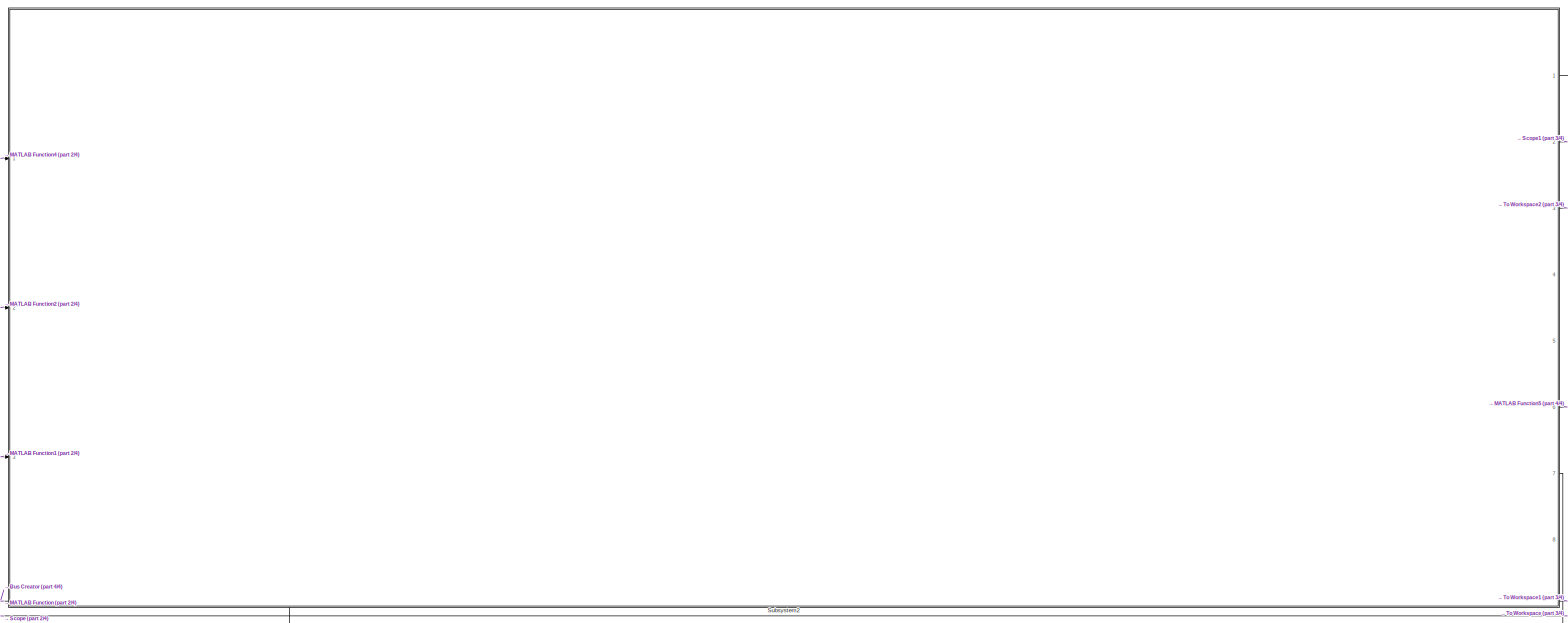
[diagram: root canvas - part 1/4, central region]
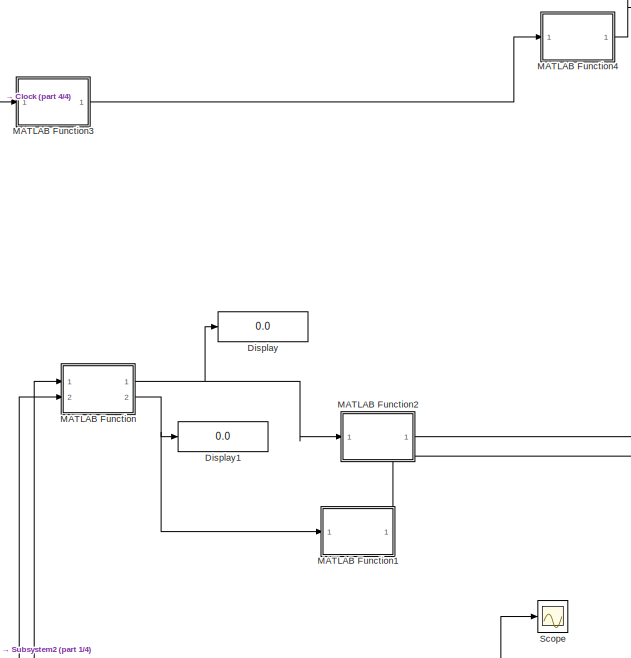
[diagram: root canvas - part 2/4, middle left region]
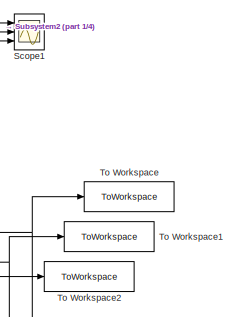
[diagram: root canvas - part 3/4, middle right region]
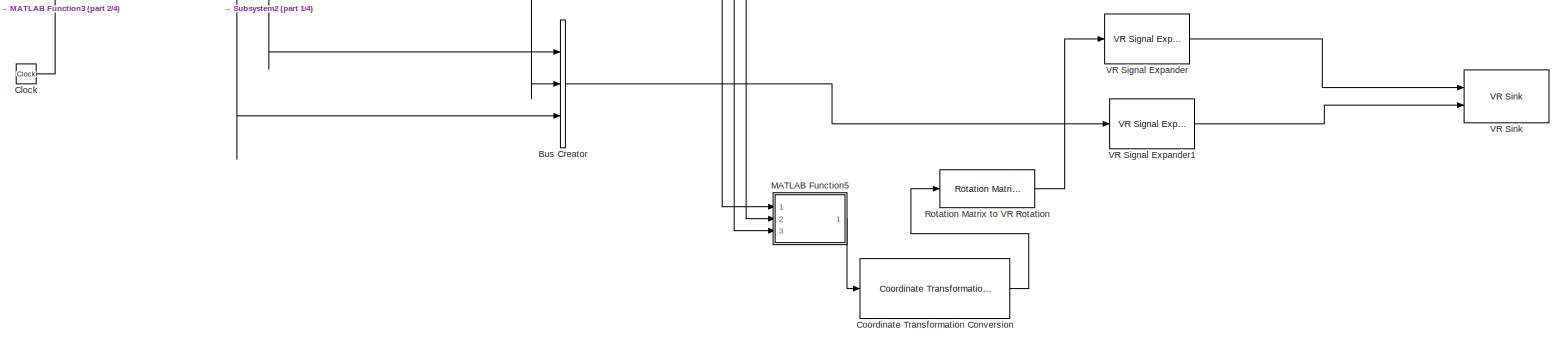
[diagram: root canvas - part 4/4, bottom center region]
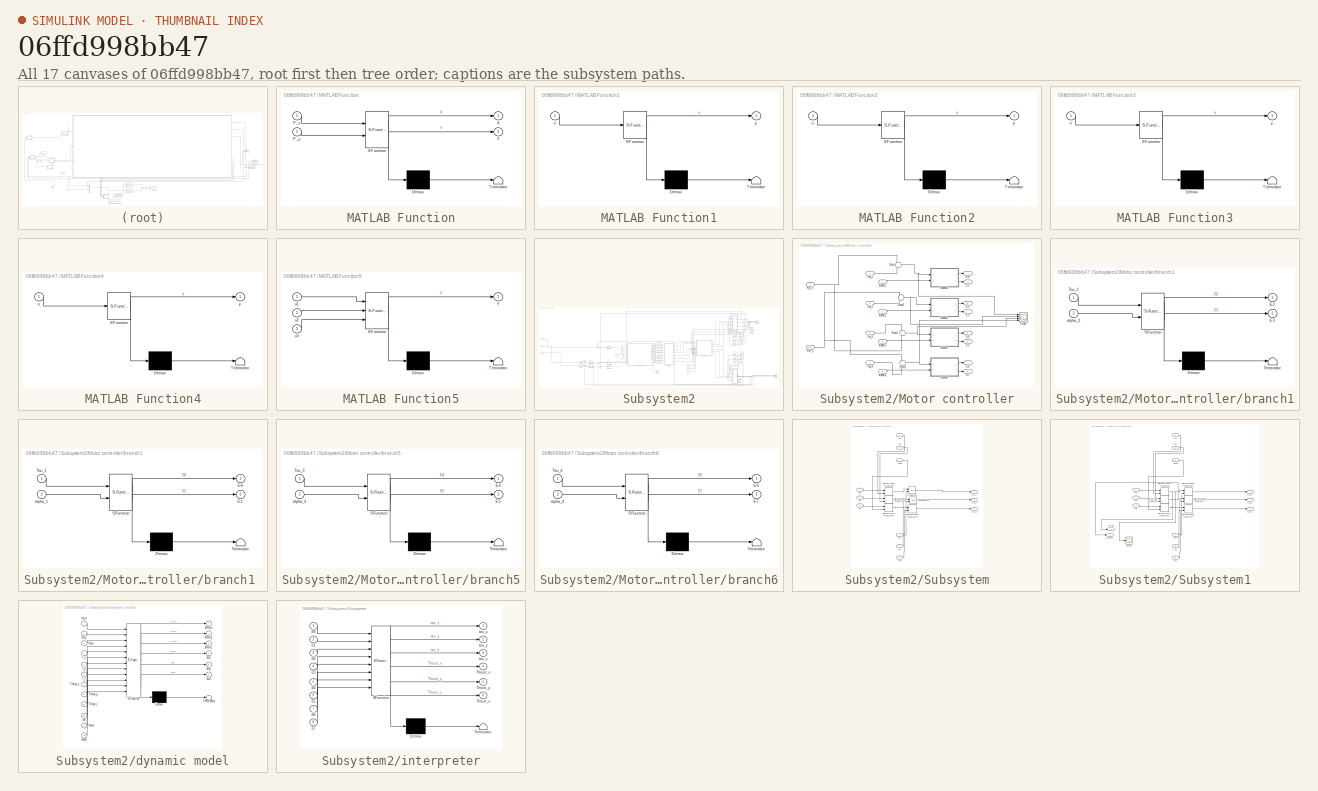
[diagram: thumbnail index - all 17 canvases of the model, root first then tree order]
MODEL slx_06ffd998bb47
KIND model
CONFIG AbsTol = auto
CONFIG EnableMultiTasking = off
CONFIG FixedStep = auto
CONFIG MaxStep = auto
CONFIG MinStep = auto
CONFIG RelTol = 1e-3
CONFIG SampleTimeConstraint = Unconstrained
CONFIG Solver = VariableStepAuto
CONFIG SolverName = VariableStepAuto
CONFIG StartTime = 0.0
CONFIG StopTime = 10
BLOCK [BusCreator] Bus Creator
  DisplayOption = bar
  InheritFromInputs = on
  Inputs = 3
  Ports = [3, 1]
BLOCK [Clock] Clock
BLOCK [Reference] Coordinate Transformation Conversion  REF=robotcorelib/Coordinate Transformation Conversion
  Ports = [1, 1]
  SourceBlock = robotcorelib/Coordinate Transformation Conversion
  SourceProductBaseCode = RO
  SourceProductName = Robotics System Toolbox
  SourceType = robotics.slcore.internal.block.CoordinateTransformationConversion
BLOCK [Display] Display
  Decimation = 1
  Ports = [1]
BLOCK [Display] Display1
  Decimation = 1
  Ports = [1]
BLOCK [SubSystem] MATLAB Function
  ErrorFcn = Stateflow.Translate.translate
  PermitHierarchicalResolution = ExplicitOnly
  Ports = [2, 2]
  RequestExecContextInheritance = off
  SFBlockType = MATLAB Function
  TreatAsAtomicUnit = on
BLOCK [Demux] MATLAB Function/ Demux 
  Outputs = 1
  Ports = [1, 1]
BLOCK [S-Function] MATLAB Function/ SFunction 
  EnableBusSupport = on
  FunctionName = sf_sfun
  PortCounts = [2 3]
  Ports = [2, 3]
  SFcnIsStateOwnerBlock = off
  SFunctionDeploymentMode = off
  Tag = Stateflow S-Function 4
BLOCK [Terminator] MATLAB Function/ Terminator 
BLOCK [Inport] MATLAB Function/P_x
  IconDisplay = Port number
BLOCK [Inport] MATLAB Function/P_y
  IconDisplay = Port number
  Port = 2
BLOCK [Outport] MATLAB Function/X
  IconDisplay = Port number
BLOCK [Outport] MATLAB Function/Y
  IconDisplay = Port number
  Port = 2
BLOCK [SubSystem] MATLAB Function1
  ErrorFcn = Stateflow.Translate.translate
  PermitHierarchicalResolution = ExplicitOnly
  Ports = [1, 1]
  RequestExecContextInheritance = off
  SFBlockType = MATLAB Function
  TreatAsAtomicUnit = on
BLOCK [Demux] MATLAB Function1/ Demux 
  Outputs = 1
  Ports = [1, 1]
BLOCK [S-Function] MATLAB Function1/ SFunction 
  EnableBusSupport = on
  FunctionName = sf_sfun
  PortCounts = [1 2]
  Ports = [1, 2]
  SFcnIsStateOwnerBlock = off
  SFunctionDeploymentMode = off
  Tag = Stateflow S-Function 8
BLOCK [Terminator] MATLAB Function1/ Terminator 
BLOCK [Inport] MATLAB Function1/u
  IconDisplay = Port number
BLOCK [Outport] MATLAB Function1/y
  IconDisplay = Port number
BLOCK [SubSystem] MATLAB Function2
  ErrorFcn = Stateflow.Translate.translate
  PermitHierarchicalResolution = ExplicitOnly
  Ports = [1, 1]
  RequestExecContextInheritance = off
  SFBlockType = MATLAB Function
  TreatAsAtomicUnit = on
BLOCK [Demux] MATLAB Function2/ Demux 
  Outputs = 1
  Ports = [1, 1]
BLOCK [S-Function] MATLAB Function2/ SFunction 
  EnableBusSupport = on
  FunctionName = sf_sfun
  PortCounts = [1 2]
  Ports = [1, 2]
  SFcnIsStateOwnerBlock = off
  SFunctionDeploymentMode = off
  Tag = Stateflow S-Function 9
BLOCK [Terminator] MATLAB Function2/ Terminator 
BLOCK [Inport] MATLAB Function2/u
  IconDisplay = Port number
BLOCK [Outport] MATLAB Function2/y
  IconDisplay = Port number
BLOCK [SubSystem] MATLAB Function3
  ErrorFcn = Stateflow.Translate.translate
  PermitHierarchicalResolution = ExplicitOnly
  Ports = [1, 1]
  RequestExecContextInheritance = off
  SFBlockType = MATLAB Function
  TreatAsAtomicUnit = on
BLOCK [Demux] MATLAB Function3/ Demux 
  Outputs = 1
  Ports = [1, 1]
BLOCK [S-Function] MATLAB Function3/ SFunction 
  EnableBusSupport = on
  FunctionName = sf_sfun
  PortCounts = [1 2]
  Ports = [1, 2]
  SFcnIsStateOwnerBlock = off
  SFunctionDeploymentMode = off
  Tag = Stateflow S-Function 10
BLOCK [Terminator] MATLAB Function3/ Terminator 
BLOCK [Inport] MATLAB Function3/u
  IconDisplay = Port number
BLOCK [Outport] MATLAB Function3/y
  IconDisplay = Port number
BLOCK [SubSystem] MATLAB Function4
  ErrorFcn = Stateflow.Translate.translate
  PermitHierarchicalResolution = ExplicitOnly
  Ports = [1, 1]
  RequestExecContextInheritance = off
  SFBlockType = MATLAB Function
  TreatAsAtomicUnit = on
BLOCK [Demux] MATLAB Function4/ Demux 
  Outputs = 1
  Ports = [1, 1]
BLOCK [S-Function] MATLAB Function4/ SFunction 
  EnableBusSupport = on
  FunctionName = sf_sfun
  PortCounts = [1 2]
  Ports = [1, 2]
  SFcnIsStateOwnerBlock = off
  SFunctionDeploymentMode = off
  Tag = Stateflow S-Function 11
BLOCK [Terminator] MATLAB Function4/ Terminator 
BLOCK [Inport] MATLAB Function4/u
  IconDisplay = Port number
BLOCK [Outport] MATLAB Function4/y
  IconDisplay = Port number
BLOCK [SubSystem] MATLAB Function5
  ErrorFcn = Stateflow.Translate.translate
  PermitHierarchicalResolution = ExplicitOnly
  Ports = [3, 1]
  RequestExecContextInheritance = off
  SFBlockType = MATLAB Function
  TreatAsAtomicUnit = on
BLOCK [Demux] MATLAB Function5/ Demux 
  Outputs = 1
  Ports = [1, 1]
BLOCK [S-Function] MATLAB Function5/ SFunction 
  EnableBusSupport = on
  FunctionName = sf_sfun
  PortCounts = [3 2]
  Ports = [3, 2]
  SFcnIsStateOwnerBlock = off
  SFunctionDeploymentMode = off
  Tag = Stateflow S-Function 12
BLOCK [Terminator] MATLAB Function5/ Terminator 
BLOCK [Outport] MATLAB Function5/Y
  IconDisplay = Port number
BLOCK [Inport] MATLAB Function5/u1
  IconDisplay = Port number
BLOCK [Inport] MATLAB Function5/u2
  IconDisplay = Port number
  Port = 2
BLOCK [Inport] MATLAB Function5/u3
  IconDisplay = Port number
  Port = 3
BLOCK [Reference] Rotation Matrix to VR Rotation  REF=vrlib/Utilities/Rotation Matrix
to VR Rotation
  Ports = [1, 1]
  SourceBlock = vrlib/Utilities/Rotation Matrix\nto VR Rotation
  SourceProductBaseCode = SL
  SourceProductName = Simulink
  SourceType = Rotation Matrix to VR Rotation
BLOCK [Scope] Scope
  Floating = off
  NumInputPorts = 1
  Ports = [1]
  ScopeSpecificationString = Simulink.scopes.TimeScopeBlockCfg('CurrentConfiguration', extmgr.ConfigurationSet(extmgr.Configuration('Core','General UI',true),extmgr.Configuration('Core','Source UI',true),extmgr.Configuration('Sources','WiredSimulink',true,'DataLoggingVariableName','ScopeData1'),extmgr.Configuration('Visuals','Time Domain',true,'SerializedDisplays',{struct('MinYLimReal','-0.09245','MaxYLimReal','0.74123','YLab...<+1447ch>
BLOCK [Scope] Scope1
  Floating = off
  NumInputPorts = 3
  Ports = [3]
  ScopeSpecificationString = Simulink.scopes.TimeScopeBlockCfg('CurrentConfiguration', extmgr.ConfigurationSet(extmgr.Configuration('Core','General UI',true),extmgr.Configuration('Core','Source UI',true),extmgr.Configuration('Sources','WiredSimulink',true,'DataLoggingVariableName','ScopeData1'),extmgr.Configuration('Visuals','Time Domain',true,'SerializedDisplays',{struct('MinYLimReal','-3.2874','MaxYLimReal','6.48249','YLabe...<+1565ch>
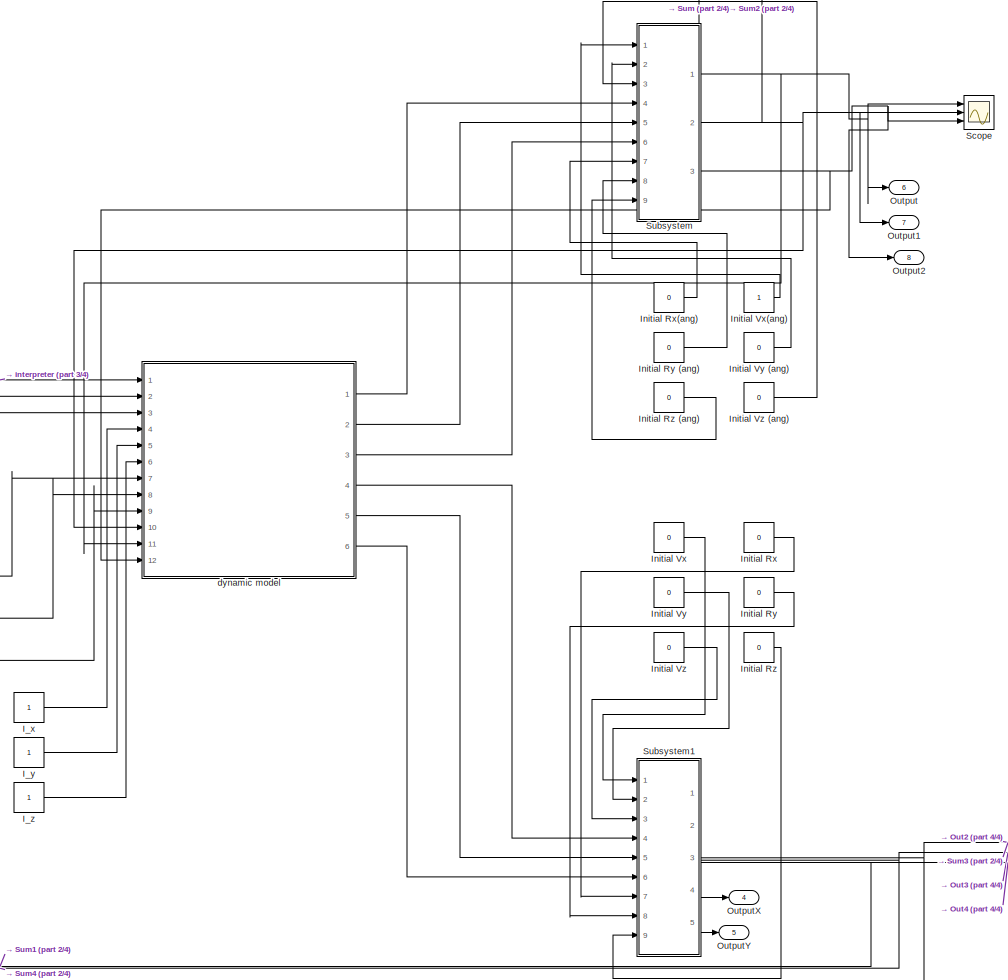
[diagram: Subsystem2 - part 1/4, right side, full height]
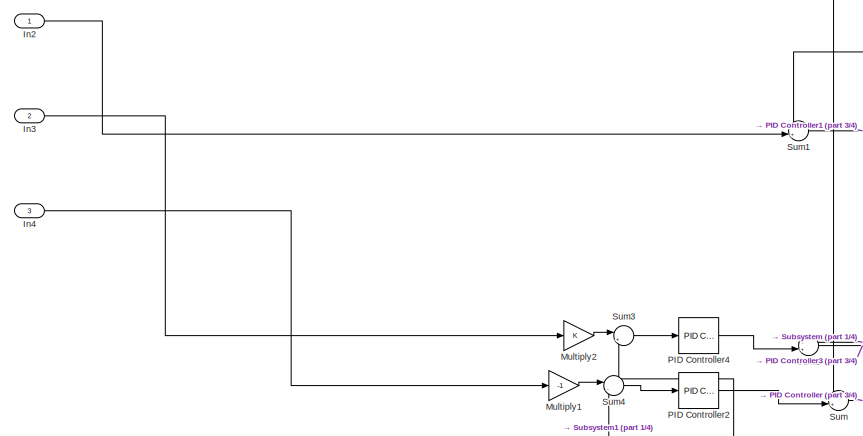
[diagram: Subsystem2 - part 2/4, middle left region]
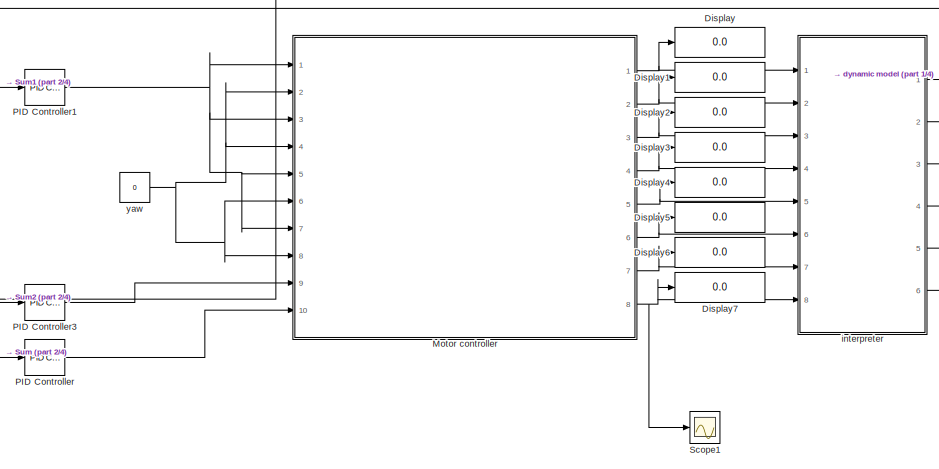
[diagram: Subsystem2 - part 3/4, central region]
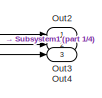
[diagram: Subsystem2 - part 4/4, bottom right region]
BLOCK [SubSystem] Subsystem2
  Ports = [3, 8]
  RequestExecContextInheritance = off
BLOCK [Display] Subsystem2/Display
  Decimation = 1
  Ports = [1]
BLOCK [Display] Subsystem2/Display1
  Decimation = 1
  Ports = [1]
BLOCK [Display] Subsystem2/Display2
  Decimation = 1
  Ports = [1]
BLOCK [Display] Subsystem2/Display3
  Decimation = 1
  Ports = [1]
BLOCK [Display] Subsystem2/Display4
  Decimation = 1
  Ports = [1]
BLOCK [Display] Subsystem2/Display5
  Decimation = 1
  Ports = [1]
BLOCK [Display] Subsystem2/Display6
  Decimation = 1
  Ports = [1]
BLOCK [Display] Subsystem2/Display7
  Decimation = 1
  Ports = [1]
BLOCK [Constant] Subsystem2/I_x
BLOCK [Constant] Subsystem2/I_y
BLOCK [Constant] Subsystem2/I_z
BLOCK [Inport] Subsystem2/In2
  IconDisplay = Port number
BLOCK [Inport] Subsystem2/In3
  IconDisplay = Port number
  Port = 2
BLOCK [Inport] Subsystem2/In4
  IconDisplay = Port number
  Port = 3
BLOCK [Constant] Subsystem2/Initial Rx
  Value = 0
BLOCK [Constant] Subsystem2/Initial Rx(ang)
  Value = 0
BLOCK [Constant] Subsystem2/Initial Ry
  Value = 0
BLOCK [Constant] Subsystem2/Initial Ry (ang)
  Value = 0
BLOCK [Constant] Subsystem2/Initial Rz
  Value = 0
BLOCK [Constant] Subsystem2/Initial Rz (ang)
  Value = 0
BLOCK [Constant] Subsystem2/Initial Vx
  Value = 0
BLOCK [Constant] Subsystem2/Initial Vx(ang)
BLOCK [Constant] Subsystem2/Initial Vy 
  Value = 0
BLOCK [Constant] Subsystem2/Initial Vy (ang)
  Value = 0
BLOCK [Constant] Subsystem2/Initial Vz
  Value = 0
BLOCK [Constant] Subsystem2/Initial Vz (ang)
  Value = 0
BLOCK [SubSystem] Subsystem2/Motor controller
  Ports = [10, 8]
  RequestExecContextInheritance = off
BLOCK [Outport] Subsystem2/Motor controller/E1
  IconDisplay = Port number
  Port = 2
BLOCK [Outport] Subsystem2/Motor controller/E2
  IconDisplay = Port number
  Port = 3
BLOCK [Outport] Subsystem2/Motor controller/E3
  IconDisplay = Port number
  Port = 4
BLOCK [Outport] Subsystem2/Motor controller/E4
  IconDisplay = Port number
  Port = 5
BLOCK [Outport] Subsystem2/Motor controller/E5
  IconDisplay = Port number
  Port = 6
BLOCK [Outport] Subsystem2/Motor controller/E6
  IconDisplay = Port number
  Port = 7
BLOCK [Outport] Subsystem2/Motor controller/E7
  IconDisplay = Port number
  Port = 8
BLOCK [Outport] Subsystem2/Motor controller/E8 
  IconDisplay = Port number
BLOCK [Inport] Subsystem2/Motor controller/Rot_X
  IconDisplay = Port number
  Port = 10
BLOCK [Inport] Subsystem2/Motor controller/Rot_Y
  IconDisplay = Port number
  Port = 9
BLOCK [Scope] Subsystem2/Motor controller/Scope
  Floating = off
  NumInputPorts = 4
  Ports = [4]
  ScopeSpecificationString = Simulink.scopes.TimeScopeBlockCfg('CurrentConfiguration', extmgr.ConfigurationSet(extmgr.Configuration('Core','General UI',true),extmgr.Configuration('Core','Source UI',true),extmgr.Configuration('Sources','WiredSimulink',true,'DataLoggingVariableName','ScopeData2'),extmgr.Configuration('Visuals','Time Domain',true,'SerializedDisplays',{struct('MinYLimReal','2.96494','MaxYLimReal','16.33723','YLab...<+1454ch>
BLOCK [Sum] Subsystem2/Motor controller/Sum
  IconShape = round
  InputSameDT = off
  Inputs = -|+
  OutDataTypeStr = Inherit: Inherit via internal rule
  Ports = [2, 1]
  SaturateOnIntegerOverflow = off
BLOCK [Sum] Subsystem2/Motor controller/Sum1
  IconShape = round
  InputSameDT = off
  Inputs = +|+
  OutDataTypeStr = Inherit: Inherit via internal rule
  Ports = [2, 1]
  SaturateOnIntegerOverflow = off
BLOCK [Sum] Subsystem2/Motor controller/Sum2
  IconShape = round
  InputSameDT = off
  Inputs = -|+
  OutDataTypeStr = Inherit: Inherit via internal rule
  Ports = [2, 1]
  SaturateOnIntegerOverflow = off
BLOCK [Sum] Subsystem2/Motor controller/Sum3
  IconShape = round
  InputSameDT = off
  Inputs = +|+
  OutDataTypeStr = Inherit: Inherit via internal rule
  Ports = [2, 1]
  SaturateOnIntegerOverflow = off
BLOCK [Inport] Subsystem2/Motor controller/Tau_1 
  IconDisplay = Port number
BLOCK [Inport] Subsystem2/Motor controller/Tau_2
  IconDisplay = Port number
  Port = 3
BLOCK [Inport] Subsystem2/Motor controller/Tau_3
  IconDisplay = Port number
  Port = 5
BLOCK [Inport] Subsystem2/Motor controller/Tau_4
  IconDisplay = Port number
  Port = 7
BLOCK [Inport] Subsystem2/Motor controller/alpha_1
  IconDisplay = Port number
  Port = 2
BLOCK [Inport] Subsystem2/Motor controller/alpha_2
  IconDisplay = Port number
  Port = 4
BLOCK [Inport] Subsystem2/Motor controller/alpha_3
  IconDisplay = Port number
  Port = 6
BLOCK [Inport] Subsystem2/Motor controller/alpha_4
  IconDisplay = Port number
  Port = 8
BLOCK [SubSystem] Subsystem2/Motor controller/branch1
  ErrorFcn = Stateflow.Translate.translate
  PermitHierarchicalResolution = ExplicitOnly
  Ports = [2, 2]
  RequestExecContextInheritance = off
  SFBlockType = MATLAB Function
  TreatAsAtomicUnit = on
BLOCK [SubSystem] Subsystem2/Motor controller/branch1 
  ErrorFcn = Stateflow.Translate.translate
  PermitHierarchicalResolution = ExplicitOnly
  Ports = [2, 2]
  RequestExecContextInheritance = off
  SFBlockType = MATLAB Function
  TreatAsAtomicUnit = on
BLOCK [Demux] Subsystem2/Motor controller/branch1 / Demux 
  Outputs = 1
  Ports = [1, 1]
BLOCK [S-Function] Subsystem2/Motor controller/branch1 / SFunction 
  EnableBusSupport = on
  FunctionName = sf_sfun
  PortCounts = [2 3]
  Ports = [2, 3]
  SFcnIsStateOwnerBlock = off
  SFunctionDeploymentMode = off
  Tag = Stateflow S-Function 2
BLOCK [Terminator] Subsystem2/Motor controller/branch1 / Terminator 
BLOCK [Outport] Subsystem2/Motor controller/branch1 /E1
  IconDisplay = Port number
  Port = 2
BLOCK [Outport] Subsystem2/Motor controller/branch1 /E8
  IconDisplay = Port number
BLOCK [Inport] Subsystem2/Motor controller/branch1 /Tau_1
  IconDisplay = Port number
BLOCK [Inport] Subsystem2/Motor controller/branch1 /alpha_1
  IconDisplay = Port number
  Port = 2
BLOCK [Demux] Subsystem2/Motor controller/branch1/ Demux 
  Outputs = 1
  Ports = [1, 1]
BLOCK [S-Function] Subsystem2/Motor controller/branch1/ SFunction 
  EnableBusSupport = on
  FunctionName = sf_sfun
  PortCounts = [2 3]
  Ports = [2, 3]
  SFcnIsStateOwnerBlock = off
  SFunctionDeploymentMode = off
  Tag = Stateflow S-Function 5
BLOCK [Terminator] Subsystem2/Motor controller/branch1/ Terminator 
BLOCK [Outport] Subsystem2/Motor controller/branch1/E2
  IconDisplay = Port number
BLOCK [Outport] Subsystem2/Motor controller/branch1/E3
  IconDisplay = Port number
  Port = 2
BLOCK [Inport] Subsystem2/Motor controller/branch1/Tau_2
  IconDisplay = Port number
BLOCK [Inport] Subsystem2/Motor controller/branch1/alpha_2
  IconDisplay = Port number
  Port = 2
BLOCK [SubSystem] Subsystem2/Motor controller/branch5
  ErrorFcn = Stateflow.Translate.translate
  PermitHierarchicalResolution = ExplicitOnly
  Ports = [2, 2]
  RequestExecContextInheritance = off
  SFBlockType = MATLAB Function
  TreatAsAtomicUnit = on
BLOCK [Demux] Subsystem2/Motor controller/branch5/ Demux 
  Outputs = 1
  Ports = [1, 1]
BLOCK [S-Function] Subsystem2/Motor controller/branch5/ SFunction 
  EnableBusSupport = on
  FunctionName = sf_sfun
  PortCounts = [2 3]
  Ports = [2, 3]
  SFcnIsStateOwnerBlock = off
  SFunctionDeploymentMode = off
  Tag = Stateflow S-Function 6
BLOCK [Terminator] Subsystem2/Motor controller/branch5/ Terminator 
BLOCK [Outport] Subsystem2/Motor controller/branch5/E4
  IconDisplay = Port number
BLOCK [Outport] Subsystem2/Motor controller/branch5/E5
  IconDisplay = Port number
  Port = 2
BLOCK [Inport] Subsystem2/Motor controller/branch5/Tau_3
  IconDisplay = Port number
BLOCK [Inport] Subsystem2/Motor controller/branch5/alpha_3
  IconDisplay = Port number
  Port = 2
BLOCK [SubSystem] Subsystem2/Motor controller/branch6
  ErrorFcn = Stateflow.Translate.translate
  PermitHierarchicalResolution = ExplicitOnly
  Ports = [2, 2]
  RequestExecContextInheritance = off
  SFBlockType = MATLAB Function
  TreatAsAtomicUnit = on
BLOCK [Demux] Subsystem2/Motor controller/branch6/ Demux 
  Outputs = 1
  Ports = [1, 1]
BLOCK [S-Function] Subsystem2/Motor controller/branch6/ SFunction 
  EnableBusSupport = on
  FunctionName = sf_sfun
  PortCounts = [2 3]
  Ports = [2, 3]
  SFcnIsStateOwnerBlock = off
  SFunctionDeploymentMode = off
  Tag = Stateflow S-Function 7
BLOCK [Terminator] Subsystem2/Motor controller/branch6/ Terminator 
BLOCK [Outport] Subsystem2/Motor controller/branch6/E6
  IconDisplay = Port number
BLOCK [Outport] Subsystem2/Motor controller/branch6/E7
  IconDisplay = Port number
  Port = 2
BLOCK [Inport] Subsystem2/Motor controller/branch6/Tau_4
  IconDisplay = Port number
BLOCK [Inport] Subsystem2/Motor controller/branch6/alpha_4
  IconDisplay = Port number
  Port = 2
BLOCK [Gain] Subsystem2/Multiply1
  Gain = -1
  OutDataTypeStr = Inherit: Inherit via internal rule
  ParamDataTypeStr = Inherit: Inherit via internal rule
  SaturateOnIntegerOverflow = off
BLOCK [Gain] Subsystem2/Multiply2
  OutDataTypeStr = Inherit: Inherit via internal rule
  ParamDataTypeStr = Inherit: Inherit via internal rule
  SaturateOnIntegerOverflow = off
BLOCK [Outport] Subsystem2/Out2
  IconDisplay = Port number
BLOCK [Outport] Subsystem2/Out3
  IconDisplay = Port number
  Port = 2
BLOCK [Outport] Subsystem2/Out4
  IconDisplay = Port number
  Port = 3
BLOCK [Outport] Subsystem2/Output
  IconDisplay = Port number
  Port = 6
BLOCK [Outport] Subsystem2/Output1
  IconDisplay = Port number
  Port = 7
BLOCK [Outport] Subsystem2/Output2
  IconDisplay = Port number
  Port = 8
BLOCK [Outport] Subsystem2/OutputX
  IconDisplay = Port number
  Port = 4
BLOCK [Outport] Subsystem2/OutputY
  IconDisplay = Port number
  Port = 5
BLOCK [Reference] Subsystem2/PID Controller  REF=simulink/Continuous/PID Controller
  Ports = [1, 1]
  SourceBlock = simulink/Continuous/PID Controller
  SourceProductBaseCode = SL
  SourceProductName = Simulink
  SourceType = PID 1dof
BLOCK [Reference] Subsystem2/PID Controller1  REF=simulink/Continuous/PID Controller
  Ports = [1, 1]
  SourceBlock = simulink/Continuous/PID Controller
  SourceProductBaseCode = SL
  SourceProductName = Simulink
  SourceType = PID 1dof
BLOCK [Reference] Subsystem2/PID Controller2  REF=simulink/Continuous/PID Controller
  Ports = [1, 1]
  SourceBlock = simulink/Continuous/PID Controller
  SourceProductBaseCode = SL
  SourceProductName = Simulink
  SourceType = PID 1dof
BLOCK [Reference] Subsystem2/PID Controller3  REF=simulink/Continuous/PID Controller
  Ports = [1, 1]
  SourceBlock = simulink/Continuous/PID Controller
  SourceProductBaseCode = SL
  SourceProductName = Simulink
  SourceType = PID 1dof
BLOCK [Reference] Subsystem2/PID Controller4  REF=simulink/Continuous/PID Controller
  Ports = [1, 1]
  SourceBlock = simulink/Continuous/PID Controller
  SourceProductBaseCode = SL
  SourceProductName = Simulink
  SourceType = PID 1dof
BLOCK [Scope] Subsystem2/Scope
  Floating = off
  NumInputPorts = 3
  Ports = [3]
  ScopeSpecificationString = Simulink.scopes.TimeScopeBlockCfg('CurrentConfiguration', extmgr.ConfigurationSet(extmgr.Configuration('Core','General UI',true),extmgr.Configuration('Core','Source UI',true),extmgr.Configuration('Sources','WiredSimulink',true),extmgr.Configuration('Visuals','Time Domain',true,'SerializedDisplays',{struct('MinYLimReal','-0.20838','MaxYLimReal','0.1719','YLabelReal','','MinYLimMag','0.00000','MaxYL...<+1517ch>
BLOCK [Scope] Subsystem2/Scope1
  Floating = off
  NumInputPorts = 1
  Ports = [1]
  ScopeSpecificationString = Simulink.scopes.TimeScopeBlockCfg('CurrentConfiguration', extmgr.ConfigurationSet(extmgr.Configuration('Core','General UI',true),extmgr.Configuration('Core','Source UI',true),extmgr.Configuration('Sources','WiredSimulink',true,'DataLoggingVariableName','ScopeData2'),extmgr.Configuration('Visuals','Time Domain',true,'SerializedDisplays',{struct('MinYLimReal','0.89215','MaxYLimReal','6.48776','YLabe...<+1395ch>
BLOCK [SubSystem] Subsystem2/Subsystem
  Ports = [9, 3]
  RequestExecContextInheritance = off
BLOCK [DiscreteIntegrator] Subsystem2/Subsystem/Discrete-Time Integrator
  ICPrevOutput = DiscIntNeverNeededParam
  ICPrevScaledInput = DiscIntNeverNeededParam
  InitialConditionSetting = Auto
  InitialConditionSource = external
  Ports = [2, 1]
  SampleTime = 0.01
BLOCK [DiscreteIntegrator] Subsystem2/Subsystem/Discrete-Time Integrator2
  ICPrevOutput = DiscIntNeverNeededParam
  ICPrevScaledInput = DiscIntNeverNeededParam
  InitialConditionSetting = Auto
  InitialConditionSource = external
  Ports = [2, 1]
  SampleTime = -1
BLOCK [DiscreteIntegrator] Subsystem2/Subsystem/Discrete-Time Integrator4
  ICPrevOutput = DiscIntNeverNeededParam
  ICPrevScaledInput = DiscIntNeverNeededParam
  InitialConditionSetting = Auto
  InitialConditionSource = external
  Ports = [2, 1]
  SampleTime = -1
BLOCK [DiscreteIntegrator] Subsystem2/Subsystem/Discrete-Time Integrator5
  ICPrevOutput = DiscIntNeverNeededParam
  ICPrevScaledInput = DiscIntNeverNeededParam
  InitialConditionSetting = Auto
  InitialConditionSource = external
  Ports = [2, 1]
  SampleTime = -1
BLOCK [Inport] Subsystem2/Subsystem/In1
  IconDisplay = Port number
BLOCK [Inport] Subsystem2/Subsystem/In2
  IconDisplay = Port number
  Port = 2
BLOCK [Inport] Subsystem2/Subsystem/In3
  IconDisplay = Port number
  Port = 4
BLOCK [Inport] Subsystem2/Subsystem/In4
  IconDisplay = Port number
  Port = 5
BLOCK [Inport] Subsystem2/Subsystem/In5
  IconDisplay = Port number
  Port = 6
BLOCK [Inport] Subsystem2/Subsystem/In6
  IconDisplay = Port number
  Port = 7
BLOCK [Inport] Subsystem2/Subsystem/In7
  IconDisplay = Port number
  Port = 8
BLOCK [Inport] Subsystem2/Subsystem/In8
  IconDisplay = Port number
  Port = 9
BLOCK [Inport] Subsystem2/Subsystem/Input
  IconDisplay = Port number
  Port = 3
BLOCK [Integrator] Subsystem2/Subsystem/Integrator
  InitialConditionSource = external
  Ports = [2, 1]
BLOCK [Integrator] Subsystem2/Subsystem/Integrator1
  InitialConditionSource = external
  Ports = [2, 1]
BLOCK [Outport] Subsystem2/Subsystem/Out1
  IconDisplay = Port number
BLOCK [Outport] Subsystem2/Subsystem/Out2
  IconDisplay = Port number
  Port = 2
BLOCK [Outport] Subsystem2/Subsystem/Out3
  IconDisplay = Port number
  Port = 3
BLOCK [SubSystem] Subsystem2/Subsystem1
  Ports = [9, 5]
  RequestExecContextInheritance = off
BLOCK [DiscreteIntegrator] Subsystem2/Subsystem1/Discrete-Time Integrator
  ICPrevOutput = DiscIntNeverNeededParam
  ICPrevScaledInput = DiscIntNeverNeededParam
  InitialConditionSetting = Auto
  InitialConditionSource = external
  Ports = [2, 1]
  SampleTime = 0.01
BLOCK [DiscreteIntegrator] Subsystem2/Subsystem1/Discrete-Time Integrator1
  ICPrevOutput = DiscIntNeverNeededParam
  ICPrevScaledInput = DiscIntNeverNeededParam
  InitialConditionSetting = Auto
  InitialConditionSource = external
  Ports = [2, 1]
  SampleTime = -1
BLOCK [DiscreteIntegrator] Subsystem2/Subsystem1/Discrete-Time Integrator2
  ICPrevOutput = DiscIntNeverNeededParam
  ICPrevScaledInput = DiscIntNeverNeededParam
  InitialConditionSetting = Auto
  InitialConditionSource = external
  Ports = [2, 1]
  SampleTime = -1
BLOCK [DiscreteIntegrator] Subsystem2/Subsystem1/Discrete-Time Integrator3
  ICPrevOutput = DiscIntNeverNeededParam
  ICPrevScaledInput = DiscIntNeverNeededParam
  InitialConditionSetting = Auto
  InitialConditionSource = external
  Ports = [2, 1]
  SampleTime = -1
BLOCK [DiscreteIntegrator] Subsystem2/Subsystem1/Discrete-Time Integrator4
  ICPrevOutput = DiscIntNeverNeededParam
  ICPrevScaledInput = DiscIntNeverNeededParam
  InitialConditionSetting = Auto
  InitialConditionSource = external
  Ports = [2, 1]
  SampleTime = -1
BLOCK [DiscreteIntegrator] Subsystem2/Subsystem1/Discrete-Time Integrator5
  ICPrevOutput = DiscIntNeverNeededParam
  ICPrevScaledInput = DiscIntNeverNeededParam
  InitialConditionSetting = Auto
  InitialConditionSource = external
  Ports = [2, 1]
  SampleTime = -1
BLOCK [Inport] Subsystem2/Subsystem1/In1
  IconDisplay = Port number
BLOCK [Inport] Subsystem2/Subsystem1/In2
  IconDisplay = Port number
  Port = 2
BLOCK [Inport] Subsystem2/Subsystem1/In3
  IconDisplay = Port number
  Port = 4
BLOCK [Inport] Subsystem2/Subsystem1/In4
  IconDisplay = Port number
  Port = 5
BLOCK [Inport] Subsystem2/Subsystem1/In5
  IconDisplay = Port number
  Port = 6
BLOCK [Inport] Subsystem2/Subsystem1/In6
  IconDisplay = Port number
  Port = 7
BLOCK [Inport] Subsystem2/Subsystem1/In7
  IconDisplay = Port number
  Port = 8
BLOCK [Inport] Subsystem2/Subsystem1/In8
  IconDisplay = Port number
  Port = 9
BLOCK [Inport] Subsystem2/Subsystem1/Input
  IconDisplay = Port number
  Port = 3
BLOCK [Outport] Subsystem2/Subsystem1/Out1
  IconDisplay = Port number
BLOCK [Outport] Subsystem2/Subsystem1/Out2
  IconDisplay = Port number
  Port = 2
BLOCK [Outport] Subsystem2/Subsystem1/Out3
  IconDisplay = Port number
  Port = 3
BLOCK [Outport] Subsystem2/Subsystem1/Output
  IconDisplay = Port number
  Port = 4
BLOCK [Outport] Subsystem2/Subsystem1/Output1
  IconDisplay = Port number
  Port = 5
BLOCK [Scope] Subsystem2/Subsystem1/Scope
  Floating = off
  NumInputPorts = 1
  Ports = [1]
  ScopeSpecificationString = Simulink.scopes.TimeScopeBlockCfg('CurrentConfiguration', extmgr.ConfigurationSet(extmgr.Configuration('Core','General UI',true),extmgr.Configuration('Core','Source UI',true),extmgr.Configuration('Sources','WiredSimulink',true,'DataLoggingVariableName','ScopeData3'),extmgr.Configuration('Visuals','Time Domain',true,'SerializedDisplays',{struct('MinYLimReal','-0.01898','MaxYLimReal','0.17084','YLab...<+1436ch>
BLOCK [Sum] Subsystem2/Sum
  IconShape = round
  InputSameDT = off
  Inputs = -+|
  OutDataTypeStr = Inherit: Inherit via internal rule
  Ports = [2, 1]
  SaturateOnIntegerOverflow = off
BLOCK [Sum] Subsystem2/Sum1
  IconShape = round
  InputSameDT = off
  Inputs = -+|
  OutDataTypeStr = Inherit: Inherit via internal rule
  Ports = [2, 1]
  SaturateOnIntegerOverflow = off
BLOCK [Sum] Subsystem2/Sum2
  IconShape = round
  InputSameDT = off
  Inputs = -+|
  OutDataTypeStr = Inherit: Inherit via internal rule
  Ports = [2, 1]
  SaturateOnIntegerOverflow = off
BLOCK [Sum] Subsystem2/Sum3
  IconShape = round
  InputSameDT = off
  Inputs = |+-
  OutDataTypeStr = Inherit: Inherit via internal rule
  Ports = [2, 1]
  SaturateOnIntegerOverflow = off
BLOCK [Sum] Subsystem2/Sum4
  IconShape = round
  InputSameDT = off
  Inputs = |--
  OutDataTypeStr = Inherit: Inherit via internal rule
  Ports = [2, 1]
  SaturateOnIntegerOverflow = off
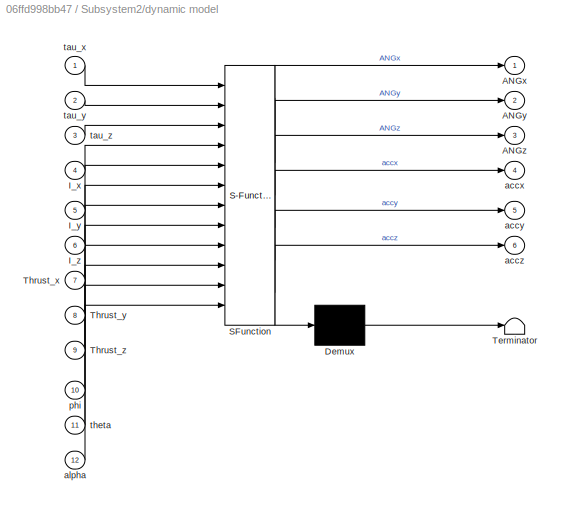
BLOCK [SubSystem] Subsystem2/dynamic model
  ErrorFcn = Stateflow.Translate.translate
  PermitHierarchicalResolution = ExplicitOnly
  Ports = [12, 6]
  RequestExecContextInheritance = off
  SFBlockType = MATLAB Function
  TreatAsAtomicUnit = on
BLOCK [Demux] Subsystem2/dynamic model/ Demux 
  Outputs = 1
  Ports = [1, 1]
BLOCK [S-Function] Subsystem2/dynamic model/ SFunction 
  EnableBusSupport = on
  FunctionName = sf_sfun
  PortCounts = [12 7]
  Ports = [12, 7]
  SFcnIsStateOwnerBlock = off
  SFunctionDeploymentMode = off
  Tag = Stateflow S-Function 1
BLOCK [Terminator] Subsystem2/dynamic model/ Terminator 
BLOCK [Outport] Subsystem2/dynamic model/ANGx
  IconDisplay = Port number
BLOCK [Outport] Subsystem2/dynamic model/ANGy
  IconDisplay = Port number
  Port = 2
BLOCK [Outport] Subsystem2/dynamic model/ANGz
  IconDisplay = Port number
  Port = 3
BLOCK [Inport] Subsystem2/dynamic model/I_x
  IconDisplay = Port number
  Port = 4
BLOCK [Inport] Subsystem2/dynamic model/I_y
  IconDisplay = Port number
  Port = 5
BLOCK [Inport] Subsystem2/dynamic model/I_z
  IconDisplay = Port number
  Port = 6
BLOCK [Inport] Subsystem2/dynamic model/Thrust_x
  IconDisplay = Port number
  Port = 7
BLOCK [Inport] Subsystem2/dynamic model/Thrust_y
  IconDisplay = Port number
  Port = 8
BLOCK [Inport] Subsystem2/dynamic model/Thrust_z
  IconDisplay = Port number
  Port = 9
BLOCK [Outport] Subsystem2/dynamic model/accx
  IconDisplay = Port number
  Port = 4
BLOCK [Outport] Subsystem2/dynamic model/accy
  IconDisplay = Port number
  Port = 5
BLOCK [Outport] Subsystem2/dynamic model/accz
  IconDisplay = Port number
  Port = 6
BLOCK [Inport] Subsystem2/dynamic model/alpha
  IconDisplay = Port number
  Port = 12
BLOCK [Inport] Subsystem2/dynamic model/phi
  IconDisplay = Port number
  Port = 10
BLOCK [Inport] Subsystem2/dynamic model/tau_x
  IconDisplay = Port number
BLOCK [Inport] Subsystem2/dynamic model/tau_y
  IconDisplay = Port number
  Port = 2
BLOCK [Inport] Subsystem2/dynamic model/tau_z
  IconDisplay = Port number
  Port = 3
BLOCK [Inport] Subsystem2/dynamic model/theta
  IconDisplay = Port number
  Port = 11
BLOCK [SubSystem] Subsystem2/interpreter
  ErrorFcn = Stateflow.Translate.translate
  PermitHierarchicalResolution = ExplicitOnly
  Ports = [8, 6]
  RequestExecContextInheritance = off
  SFBlockType = MATLAB Function
  TreatAsAtomicUnit = on
BLOCK [Demux] Subsystem2/interpreter/ Demux 
  Outputs = 1
  Ports = [1, 1]
BLOCK [S-Function] Subsystem2/interpreter/ SFunction 
  EnableBusSupport = on
  FunctionName = sf_sfun
  PortCounts = [8 7]
  Ports = [8, 7]
  SFcnIsStateOwnerBlock = off
  SFunctionDeploymentMode = off
  Tag = Stateflow S-Function 3
BLOCK [Terminator] Subsystem2/interpreter/ Terminator 
BLOCK [Inport] Subsystem2/interpreter/E1
  IconDisplay = Port number
  Port = 2
BLOCK [Inport] Subsystem2/interpreter/E2
  IconDisplay = Port number
  Port = 3
BLOCK [Inport] Subsystem2/interpreter/E3
  IconDisplay = Port number
  Port = 4
BLOCK [Inport] Subsystem2/interpreter/E4
  IconDisplay = Port number
  Port = 5
BLOCK [Inport] Subsystem2/interpreter/E5
  IconDisplay = Port number
  Port = 6
BLOCK [Inport] Subsystem2/interpreter/E6
  IconDisplay = Port number
  Port = 7
BLOCK [Inport] Subsystem2/interpreter/E7
  IconDisplay = Port number
  Port = 8
BLOCK [Inport] Subsystem2/interpreter/E8
  IconDisplay = Port number
BLOCK [Outport] Subsystem2/interpreter/Thrust_x
  IconDisplay = Port number
  Port = 4
BLOCK [Outport] Subsystem2/interpreter/Thrust_y
  IconDisplay = Port number
  Port = 5
BLOCK [Outport] Subsystem2/interpreter/Thrust_z
  IconDisplay = Port number
  Port = 6
BLOCK [Outport] Subsystem2/interpreter/tau_x
  IconDisplay = Port number
BLOCK [Outport] Subsystem2/interpreter/tau_y
  IconDisplay = Port number
  Port = 2
BLOCK [Outport] Subsystem2/interpreter/tau_z
  IconDisplay = Port number
  Port = 3
BLOCK [Constant] Subsystem2/yaw
  Value = 0
BLOCK [ToWorkspace] To Workspace
  FixptAsFi = on
  MaxDataPoints = inf
  Ports = [1]
  SampleTime = -1
  VariableName = X
BLOCK [ToWorkspace] To Workspace1
  FixptAsFi = on
  MaxDataPoints = inf
  Ports = [1]
  SampleTime = -1
  VariableName = Y
BLOCK [ToWorkspace] To Workspace2
  FixptAsFi = on
  MaxDataPoints = inf
  Ports = [1]
  SampleTime = -1
  VariableName = Z
BLOCK [Reference] VR Signal Expander  REF=vrlib/VR Signal Expander
  Ports = [1, 1]
  SourceBlock = vrlib/VR Signal Expander
  SourceProductBaseCode = SL
  SourceProductName = Simulink
  SourceType = VR Signal Expander
BLOCK [Reference] VR Signal Expander1  REF=vrlib/VR Signal Expander
  Ports = [1, 1]
  SourceBlock = vrlib/VR Signal Expander
  SourceProductBaseCode = SL
  SourceProductName = Simulink
  SourceType = VR Signal Expander
BLOCK [Reference] VR Sink  REF=vrlib/VR Sink
  InstantiateOnLoad = on
  Ports = [2]
  SourceBlock = vrlib/VR Sink
  SourceProductBaseCode = SL
  SourceProductName = Simulink
  SourceType = Virtual Reality Sink
LINE Bus Creator:1 -> VR Signal Expander1:1
LINE Clock:1 -> MATLAB Function3:1
LINE Coordinate Transformation Conversion:1 -> Rotation Matrix to VR Rotation:1
LINE MATLAB Function1:1 -> Subsystem2:3
LINE MATLAB Function2:1 -> Subsystem2:2
LINE MATLAB Function3:1 -> MATLAB Function4:1
LINE MATLAB Function4:1 -> Subsystem2:1
LINE MATLAB Function5:1 -> Coordinate Transformation Conversion:1
NET MATLAB Function:1 -> Display:1, MATLAB Function2:1
NET MATLAB Function:2 -> Display1:1, MATLAB Function1:1
LINE Rotation Matrix to VR Rotation:1 -> VR Signal Expander:1
LINE Subsystem2/I_x:1 -> Subsystem2/dynamic model:4
LINE Subsystem2/I_y:1 -> Subsystem2/dynamic model:5
LINE Subsystem2/I_z:1 -> Subsystem2/dynamic model:6
LINE Subsystem2/In2:1 -> Subsystem2/Sum1:2
LINE Subsystem2/In3:1 -> Subsystem2/Multiply2:1
LINE Subsystem2/In4:1 -> Subsystem2/Multiply1:1
LINE Subsystem2/Initial Rx(ang):1 -> Subsystem2/Subsystem:7
LINE Subsystem2/Initial Rx:1 -> Subsystem2/Subsystem1:7
LINE Subsystem2/Initial Ry (ang):1 -> Subsystem2/Subsystem:8
LINE Subsystem2/Initial Ry:1 -> Subsystem2/Subsystem1:8
LINE Subsystem2/Initial Rz (ang):1 -> Subsystem2/Subsystem:9
LINE Subsystem2/Initial Rz:1 -> Subsystem2/Subsystem1:9
LINE Subsystem2/Initial Vx(ang):1 -> Subsystem2/Subsystem:1
LINE Subsystem2/Initial Vx:1 -> Subsystem2/Subsystem1:1
LINE Subsystem2/Initial Vy (ang):1 -> Subsystem2/Subsystem:2
LINE Subsystem2/Initial Vy :1 -> Subsystem2/Subsystem1:2
LINE Subsystem2/Initial Vz (ang):1 -> Subsystem2/Subsystem:3
LINE Subsystem2/Initial Vz:1 -> Subsystem2/Subsystem1:3
NET Subsystem2/Motor controller/Rot_X:1 -> Subsystem2/Motor controller/Sum2:1, Subsystem2/Motor controller/Sum3:1
NET Subsystem2/Motor controller/Rot_Y:1 -> Subsystem2/Motor controller/Sum1:2, Subsystem2/Motor controller/Sum:1
NET Subsystem2/Motor controller/Sum1:1 -> Subsystem2/Motor controller/Scope:3, Subsystem2/Motor controller/branch5:1
NET Subsystem2/Motor controller/Sum2:1 -> Subsystem2/Motor controller/Scope:2, Subsystem2/Motor controller/branch1:1
NET Subsystem2/Motor controller/Sum3:1 -> Subsystem2/Motor controller/Scope:4, Subsystem2/Motor controller/branch6:1
NET Subsystem2/Motor controller/Sum:1 -> Subsystem2/Motor controller/Scope:1, Subsystem2/Motor controller/branch1 :1
LINE Subsystem2/Motor controller/Tau_1 :1 -> Subsystem2/Motor controller/Sum:2
LINE Subsystem2/Motor controller/Tau_2:1 -> Subsystem2/Motor controller/Sum2:2
LINE Subsystem2/Motor controller/Tau_3:1 -> Subsystem2/Motor controller/Sum1:1
LINE Subsystem2/Motor controller/Tau_4:1 -> Subsystem2/Motor controller/Sum3:2
LINE Subsystem2/Motor controller/alpha_1:1 -> Subsystem2/Motor controller/branch1 :2
LINE Subsystem2/Motor controller/alpha_2:1 -> Subsystem2/Motor controller/branch1:2
LINE Subsystem2/Motor controller/alpha_3:1 -> Subsystem2/Motor controller/branch5:2
LINE Subsystem2/Motor controller/alpha_4:1 -> Subsystem2/Motor controller/branch6:2
LINE Subsystem2/Motor controller/branch1 :1 -> Subsystem2/Motor controller/E8 :1
LINE Subsystem2/Motor controller/branch1 :2 -> Subsystem2/Motor controller/E1:1
LINE Subsystem2/Motor controller/branch1:1 -> Subsystem2/Motor controller/E2:1
LINE Subsystem2/Motor controller/branch1:2 -> Subsystem2/Motor controller/E3:1
LINE Subsystem2/Motor controller/branch5:1 -> Subsystem2/Motor controller/E4:1
LINE Subsystem2/Motor controller/branch5:2 -> Subsystem2/Motor controller/E5:1
LINE Subsystem2/Motor controller/branch6:1 -> Subsystem2/Motor controller/E6:1
LINE Subsystem2/Motor controller/branch6:2 -> Subsystem2/Motor controller/E7:1
NET Subsystem2/Motor controller:1 -> Subsystem2/Display:1, Subsystem2/interpreter:1
NET Subsystem2/Motor controller:2 -> Subsystem2/Display1:1, Subsystem2/interpreter:2
NET Subsystem2/Motor controller:3 -> Subsystem2/Display2:1, Subsystem2/interpreter:3
NET Subsystem2/Motor controller:4 -> Subsystem2/Display3:1, Subsystem2/interpreter:4
NET Subsystem2/Motor controller:5 -> Subsystem2/Display4:1, Subsystem2/interpreter:5
NET Subsystem2/Motor controller:6 -> Subsystem2/Display5:1, Subsystem2/interpreter:6
NET Subsystem2/Motor controller:7 -> Subsystem2/Display6:1, Subsystem2/interpreter:7
NET Subsystem2/Motor controller:8 -> Subsystem2/Display7:1, Subsystem2/Scope1:1, Subsystem2/interpreter:8
LINE Subsystem2/Multiply1:1 -> Subsystem2/Sum4:1
LINE Subsystem2/Multiply2:1 -> Subsystem2/Sum3:1
NET Subsystem2/PID Controller1:1 -> Subsystem2/Motor controller:1, Subsystem2/Motor controller:3, Subsystem2/Motor controller:5, Subsystem2/Motor controller:7
LINE Subsystem2/PID Controller2:1 -> Subsystem2/Sum:2
LINE Subsystem2/PID Controller3:1 -> Subsystem2/Motor controller:9
LINE Subsystem2/PID Controller4:1 -> Subsystem2/Sum2:2
LINE Subsystem2/PID Controller:1 -> Subsystem2/Motor controller:10
LINE Subsystem2/Subsystem/Discrete-Time Integrator2:1 -> Subsystem2/Subsystem/Integrator1:1
LINE Subsystem2/Subsystem/Discrete-Time Integrator4:1 -> Subsystem2/Subsystem/Out3:1
LINE Subsystem2/Subsystem/Discrete-Time Integrator5:1 -> Subsystem2/Subsystem/Discrete-Time Integrator4:1
LINE Subsystem2/Subsystem/Discrete-Time Integrator:1 -> Subsystem2/Subsystem/Integrator:1
LINE Subsystem2/Subsystem/In1:1 -> Subsystem2/Subsystem/Discrete-Time Integrator:2
LINE Subsystem2/Subsystem/In2:1 -> Subsystem2/Subsystem/Discrete-Time Integrator2:2
LINE Subsystem2/Subsystem/In3:1 -> Subsystem2/Subsystem/Discrete-Time Integrator:1
LINE Subsystem2/Subsystem/In4:1 -> Subsystem2/Subsystem/Discrete-Time Integrator2:1
LINE Subsystem2/Subsystem/In5:1 -> Subsystem2/Subsystem/Discrete-Time Integrator5:1
LINE Subsystem2/Subsystem/In6:1 -> Subsystem2/Subsystem/Integrator:2
LINE Subsystem2/Subsystem/In7:1 -> Subsystem2/Subsystem/Integrator1:2
LINE Subsystem2/Subsystem/In8:1 -> Subsystem2/Subsystem/Discrete-Time Integrator4:2
LINE Subsystem2/Subsystem/Input:1 -> Subsystem2/Subsystem/Discrete-Time Integrator5:2
LINE Subsystem2/Subsystem/Integrator1:1 -> Subsystem2/Subsystem/Out2:1
LINE Subsystem2/Subsystem/Integrator:1 -> Subsystem2/Subsystem/Out1:1
LINE Subsystem2/Subsystem1/Discrete-Time Integrator1:1 -> Subsystem2/Subsystem1/Out1:1
NET Subsystem2/Subsystem1/Discrete-Time Integrator2:1 -> Subsystem2/Subsystem1/Discrete-Time Integrator3:1, Subsystem2/Subsystem1/Output1:1
LINE Subsystem2/Subsystem1/Discrete-Time Integrator3:1 -> Subsystem2/Subsystem1/Out2:1
LINE Subsystem2/Subsystem1/Discrete-Time Integrator4:1 -> Subsystem2/Subsystem1/Out3:1
LINE Subsystem2/Subsystem1/Discrete-Time Integrator5:1 -> Subsystem2/Subsystem1/Discrete-Time Integrator4:1
NET Subsystem2/Subsystem1/Discrete-Time Integrator:1 -> Subsystem2/Subsystem1/Discrete-Time Integrator1:1, Subsystem2/Subsystem1/Output:1, Subsystem2/Subsystem1/Scope:1
LINE Subsystem2/Subsystem1/In1:1 -> Subsystem2/Subsystem1/Discrete-Time Integrator:2
LINE Subsystem2/Subsystem1/In2:1 -> Subsystem2/Subsystem1/Discrete-Time Integrator2:2
LINE Subsystem2/Subsystem1/In3:1 -> Subsystem2/Subsystem1/Discrete-Time Integrator:1
LINE Subsystem2/Subsystem1/In4:1 -> Subsystem2/Subsystem1/Discrete-Time Integrator2:1
LINE Subsystem2/Subsystem1/In5:1 -> Subsystem2/Subsystem1/Discrete-Time Integrator5:1
LINE Subsystem2/Subsystem1/In6:1 -> Subsystem2/Subsystem1/Discrete-Time Integrator1:2
LINE Subsystem2/Subsystem1/In7:1 -> Subsystem2/Subsystem1/Discrete-Time Integrator3:2
LINE Subsystem2/Subsystem1/In8:1 -> Subsystem2/Subsystem1/Discrete-Time Integrator4:2
LINE Subsystem2/Subsystem1/Input:1 -> Subsystem2/Subsystem1/Discrete-Time Integrator5:2
NET Subsystem2/Subsystem1:1 -> Subsystem2/Out2:1, Subsystem2/Sum3:2
NET Subsystem2/Subsystem1:2 -> Subsystem2/Out3:1, Subsystem2/Sum4:2
NET Subsystem2/Subsystem1:3 -> Subsystem2/Out4:1, Subsystem2/Sum1:1
LINE Subsystem2/Subsystem1:4 -> Subsystem2/OutputX:1
LINE Subsystem2/Subsystem1:5 -> Subsystem2/OutputY:1
NET Subsystem2/Subsystem:1 -> Subsystem2/Output:1, Subsystem2/Scope:1, Subsystem2/Sum:1, Subsystem2/dynamic model:11
NET Subsystem2/Subsystem:2 -> Subsystem2/Output1:1, Subsystem2/Scope:2, Subsystem2/Sum2:1, Subsystem2/dynamic model:10
NET Subsystem2/Subsystem:3 -> Subsystem2/Output2:1, Subsystem2/Scope:3, Subsystem2/dynamic model:12
LINE Subsystem2/Sum1:1 -> Subsystem2/PID Controller1:1
LINE Subsystem2/Sum2:1 -> Subsystem2/PID Controller3:1
LINE Subsystem2/Sum3:1 -> Subsystem2/PID Controller4:1
LINE Subsystem2/Sum4:1 -> Subsystem2/PID Controller2:1
LINE Subsystem2/Sum:1 -> Subsystem2/PID Controller:1
LINE Subsystem2/dynamic model:1 -> Subsystem2/Subsystem:4
LINE Subsystem2/dynamic model:2 -> Subsystem2/Subsystem:5
LINE Subsystem2/dynamic model:3 -> Subsystem2/Subsystem:6
LINE Subsystem2/dynamic model:4 -> Subsystem2/Subsystem1:4
LINE Subsystem2/dynamic model:5 -> Subsystem2/Subsystem1:5
LINE Subsystem2/dynamic model:6 -> Subsystem2/Subsystem1:6
LINE Subsystem2/interpreter:1 -> Subsystem2/dynamic model:1
LINE Subsystem2/interpreter:2 -> Subsystem2/dynamic model:2
LINE Subsystem2/interpreter:3 -> Subsystem2/dynamic model:3
LINE Subsystem2/interpreter:4 -> Subsystem2/dynamic model:7
LINE Subsystem2/interpreter:5 -> Subsystem2/dynamic model:8
LINE Subsystem2/interpreter:6 -> Subsystem2/dynamic model:9
NET Subsystem2/yaw:1 -> Subsystem2/Motor controller:2, Subsystem2/Motor controller:4, Subsystem2/Motor controller:6, Subsystem2/Motor controller:8
NET Subsystem2:1 -> Bus Creator:3, MATLAB Function:1, Scope1:1, Scope:1, To Workspace:1
NET Subsystem2:2 -> Bus Creator:1, MATLAB Function:2, Scope1:2, To Workspace1:1
NET Subsystem2:3 -> Bus Creator:2, Scope1:3, To Workspace2:1
LINE Subsystem2:6 -> MATLAB Function5:1
LINE Subsystem2:7 -> MATLAB Function5:3
LINE Subsystem2:8 -> MATLAB Function5:2
LINE VR Signal Expander1:1 -> VR Sink:2
LINE VR Signal Expander:1 -> VR Sink:1
note: NET lines group one-source signal fan-out (src -> all destinations, sorted); 1:1 wires keep LINE
CHART Subsystem2/dynamic model states=1 transitions=1
  STATE_LABEL 'eML_blk_kernel()'
  STATE_LABEL 'SCRIPT:\nfunction [ANGx, ANGy, ANGz, accx ,accy, accz] = fcn(tau_x, tau_y, tau_z, I_x, I_y, I_z,Thrust_x,Thrust_y,Thrust_z, phi, theta, alpha)\ng = 3;\nmass = 5;\n\nANG = [tau_x/I_x;tau_y/I_y;tau_z/I_z];\n\nANGx = ANG(1);\nANGy = ANG(2);\nANGz = ANG(3);\n\nacc = [(Thrust_x/mass);(Thrust_y/mass);(Thrust_z/mass)];\naccx = acc(1) - g*sin(phi);\naccy = acc(2) - g*sin(theta);\naccz = acc(3) - g*cos(alpha);\nend\n\n'
CHART Subsystem2/Motor controller/branch1
 states=1 transitions=1
  STATE_LABEL 'eML_blk_kernel()'
  STATE_LABEL 'SCRIPT:\nfunction[E8, E1] = fcn(Tau_1, alpha_1)\n    E8 = (Tau_1 - (alpha_1*Tau_1))*0.5;\n    E1 = (Tau_1 + (alpha_1*Tau_1))*0.5;\nend'
CHART Subsystem2/interpreter states=1 transitions=1
  STATE_LABEL 'eML_blk_kernel()'
  STATE_LABEL 'SCRIPT:\nfunction [tau_x, tau_y, tau_z, Thrust_x, Thrust_y, Thrust_z] = fcn(E8, E1, E2, E3, E4, E5, E6, E7)\n\ntau_x = ((E2+E3)-(E6+E7)) + 0.1*((E1+E4)-(E5+E8));\ntau_y = ((E4+E5)-(E1+E8)) + 0.1*((E3+E6)-(E2+E7));\ntau_z = (0.1*(E2+E6+E8+E4) - 0.1*(E3+E7+E1+E5));\n\nThrust_z = E1+E2+E3+E4+E5+E6+E7+E8;\nThrust_y = (0.1*(E5+E8)) - (0.1*(E4+E1));\nThrust_x = (0.1*(E3+E6)) - (0.1*(E2+E7));\n\nend\n'
CHART MATLAB Function states=1 transitions=1
  STATE_LABEL 'eML_blk_kernel()'
  STATE_LABEL 'SCRIPT:\nfunction [X,Y] = fcn(P_x, P_y)\n    \n    persistent y \n        if isempty(y)\n        y = 1;\n    end\n \n   \n\nA = [1 2; 6 5]\nX = A(y,1)\nY = A(y,2)\nE_x = X - P_x;\nE_y = Y - P_y;\nE = abs(E_x + E_y);\n\n            if (E > 0.05)\n                y = y;\n       \n            else if ((y+1) > 2) \n                y = y;\n                \n                \n            else        \n                y = y+1;\n ...<+69ch>'
CHART Subsystem2/Motor controller/branch1 states=1 transitions=1
  STATE_LABEL 'eML_blk_kernel()'
  STATE_LABEL 'SCRIPT:\nfunction[E2, E3] = fcn(Tau_2, alpha_2)\n    E2 = (Tau_2 - (alpha_2*Tau_2))*0.5;\n    E3 = (Tau_2 + (alpha_2*Tau_2))*0.5;\nend'
CHART Subsystem2/Motor controller/branch5 states=1 transitions=1
  STATE_LABEL 'eML_blk_kernel()'
  STATE_LABEL 'SCRIPT:\nfunction[E4, E5] = fcn(Tau_3, alpha_3)\n    E4 = (Tau_3 - (alpha_3*Tau_3))*0.5;\n    E5 = (Tau_3 + (alpha_3*Tau_3))*0.5;\nend'
CHART Subsystem2/Motor controller/branch6 states=1 transitions=1
  STATE_LABEL 'eML_blk_kernel()'
  STATE_LABEL 'SCRIPT:\nfunction[E6, E7] = fcn(Tau_4, alpha_4)\n    E6 = (Tau_4 - (alpha_4*Tau_4))*0.5;\n    E7 = (Tau_4 + (alpha_4*Tau_4))*0.5;\nend'
CHART MATLAB Function1 states=1 transitions=1
  STATE_LABEL 'eML_blk_kernel()'
  STATE_LABEL 'SCRIPT:\nfunction y = fcn(u)\n\n    persistent u_old\n        if isempty(u_old)\n               u_old = 0;\n        end\n        \n        E = u - u_old;\n        \n        y = u_old + 0.001*E;\n        u_old = y;\n        \n\nend\n\n'  <repeated x3 — deduplicated; at blocks: MATLAB Function1, MATLAB Function2, MATLAB Function4>
CHART MATLAB Function2 states=1 transitions=1
  STATE_LABEL 'eML_blk_kernel()'
CHART MATLAB Function3 states=1 transitions=1
  STATE_LABEL 'eML_blk_kernel()'
  STATE_LABEL 'SCRIPT:\nfunction y = fcn(u)\n\nif (u > 50)\n    y = 0.5\nelse \n    y = 5\nend\nend\n'
CHART MATLAB Function4 states=1 transitions=1
  STATE_LABEL 'eML_blk_kernel()'
CHART MATLAB Function5 states=1 transitions=1
  STATE_LABEL 'eML_blk_kernel()'
  STATE_LABEL 'SCRIPT:\nfunction Y = fcn(u1, u2, u3)\n\n\npersistent A\n\n    if isempty(A)\n    A = [0; 0; 0];\n    \n    else\n    A(1,1) = u1;\n    A(2,1) = u2;\n    A(3,1) = u3;\n    end\n    Y = A;\nend\n\n'
